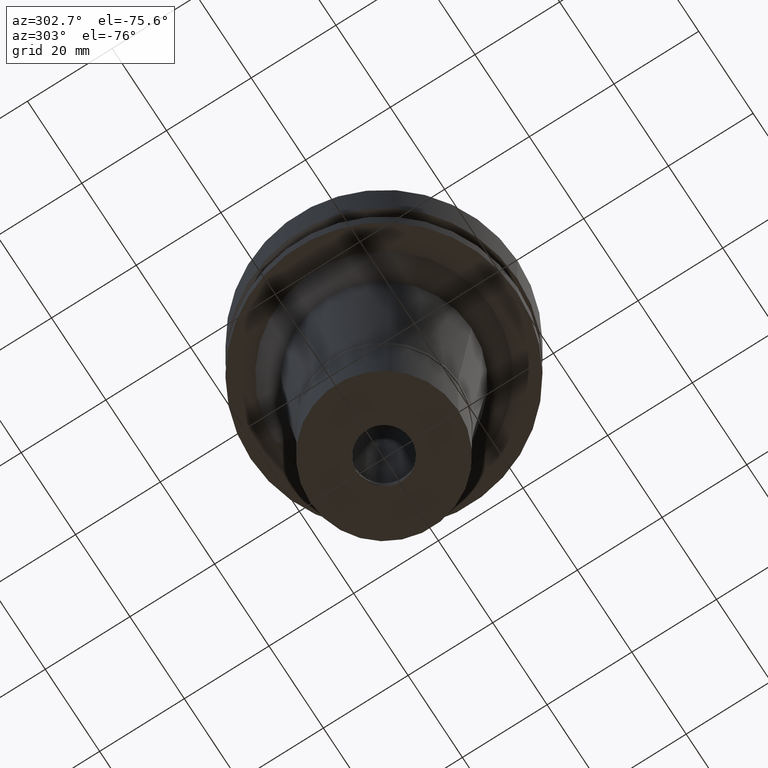
[diagram: clean part render]
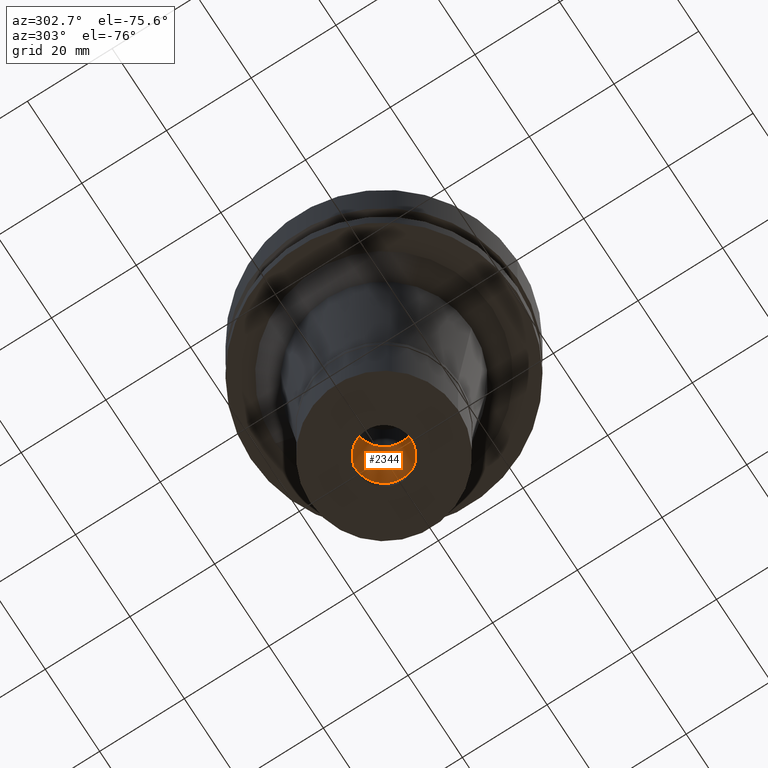
[diagram: same view with one face highlighted and labeled with its STEP entity id]
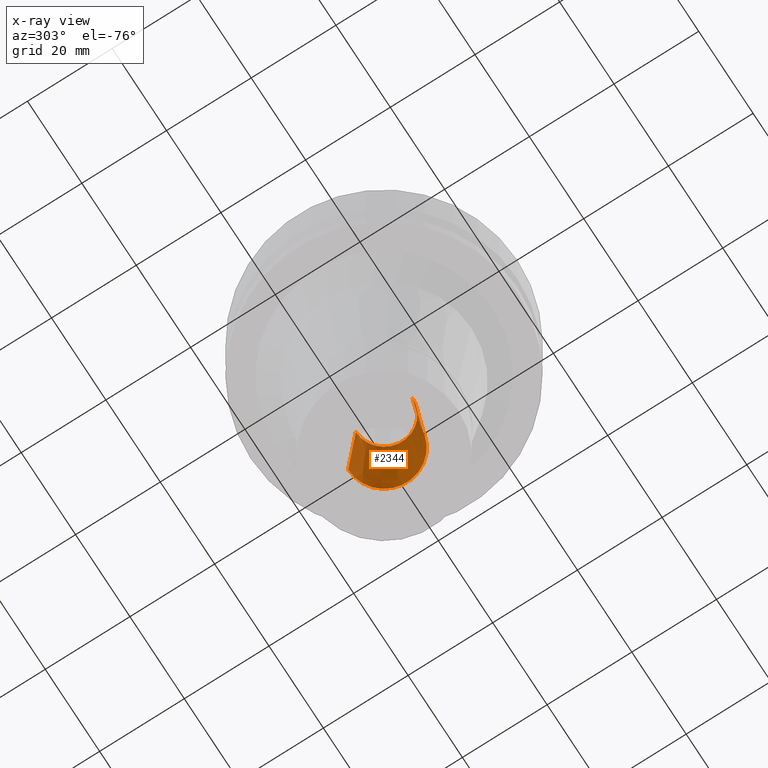
[diagram: x-ray of the same camera — body ghosted, the highlighted face saturated]
A machine part, auxiliary view. The second image highlights one B-rep face of the part: STEP entity #2344.
The next image is the same camera in x-ray: the body ghosted, the highlighted face saturated — about 10% of this face is hidden behind the body in this view.
In plain terms, the highlighted conical surface has half-angle 4 deg.
Its self-contained STEP definition (entity closure, byte-faithful):
#93 = AXIS2_PLACEMENT_3D ( 'NONE', #2412, #1977, #872 ) ;
#105 = AXIS2_PLACEMENT_3D ( 'NONE', #1841, #752, #2311 ) ;
#175 = VERTEX_POINT ( 'NONE', #1789 ) ;
#193 = VECTOR ( 'NONE', #623, 1000.000000000000000 ) ;
#197 = AXIS2_PLACEMENT_3D ( 'NONE', #2849, #618, #1626 ) ;
#203 = EDGE_LOOP ( 'NONE', ( #865, #1835, #1834, #771 ) ) ;
#421 = VECTOR ( 'NONE', #2704, 1000.000000000000000 ) ;
#618 = DIRECTION ( 'NONE',  ( 0.0000000000000000000, 0.0000000000000000000, -1.000000000000000000 ) ) ;
#623 = DIRECTION ( 'NONE',  ( 0.0000000000000000000, -0.06975647374412173585, 0.9975640502598245307 ) ) ;
#732 = LINE ( 'NONE', #2160, #193 ) ;
#752 = DIRECTION ( 'NONE',  ( 0.0000000000000000000, 0.0000000000000000000, -1.000000000000000000 ) ) ;
#771 = ORIENTED_EDGE ( 'NONE', *, *, #1538, .F. ) ;
#794 = CONICAL_SURFACE ( 'NONE', #197, 7.575000000000000178, 0.06981317007975955391 ) ;
#845 = CARTESIAN_POINT ( 'NONE',  ( 0.0000000000000000000, 6.649999999999999467, -56.84376742508000291 ) ) ;
#865 = ORIENTED_EDGE ( 'NONE', *, *, #2471, .T. ) ;
#872 = DIRECTION ( 'NONE',  ( 0.0000000000000000000, 1.000000000000000000, 0.0000000000000000000 ) ) ;
#901 = EDGE_CURVE ( 'NONE', #1087, #175, #1636, .T. ) ;
#1087 = VERTEX_POINT ( 'NONE', #1966 ) ;
#1210 = CIRCLE ( 'NONE', #93, 6.649999999999999467 ) ;
#1286 = EDGE_CURVE ( 'NONE', #1687, #175, #1210, .T. ) ;
#1329 = CIRCLE ( 'NONE', #105, 8.500000000000000000 ) ;
#1538 = EDGE_CURVE ( 'NONE', #2715, #1687, #732, .T. ) ;
#1605 = CARTESIAN_POINT ( 'NONE',  ( 0.0000000000000000000, -8.500000000000000000, -83.29999999999999716 ) ) ;
#1626 = DIRECTION ( 'NONE',  ( 0.0000000000000000000, -1.000000000000000000, 0.0000000000000000000 ) ) ;
#1636 = LINE ( 'NONE', #1605, #421 ) ;
#1681 = CARTESIAN_POINT ( 'NONE',  ( 0.0000000000000000000, 8.500000000000000000, -83.29999999999999716 ) ) ;
#1687 = VERTEX_POINT ( 'NONE', #845 ) ;
#1746 = FACE_OUTER_BOUND ( 'NONE', #203, .T. ) ;
#1789 = CARTESIAN_POINT ( 'NONE',  ( 0.0000000000000000000, -6.649999999999999467, -56.84376742508000291 ) ) ;
#1834 = ORIENTED_EDGE ( 'NONE', *, *, #1286, .F. ) ;
#1835 = ORIENTED_EDGE ( 'NONE', *, *, #901, .T. ) ;
#1841 = CARTESIAN_POINT ( 'NONE',  ( 0.0000000000000000000, 0.0000000000000000000, -83.29999999999999716 ) ) ;
#1966 = CARTESIAN_POINT ( 'NONE',  ( 0.0000000000000000000, -8.500000000000000000, -83.29999999999999716 ) ) ;
#1977 = DIRECTION ( 'NONE',  ( 0.0000000000000000000, 0.0000000000000000000, -1.000000000000000000 ) ) ;
#2160 = CARTESIAN_POINT ( 'NONE',  ( 0.0000000000000000000, 8.500000000000000000, -83.29999999999999716 ) ) ;
#2311 = DIRECTION ( 'NONE',  ( 0.0000000000000000000, 1.000000000000000000, 0.0000000000000000000 ) ) ;
#2344 = ADVANCED_FACE ( 'NONE', ( #1746 ), #794, .F. ) ;
#2412 = CARTESIAN_POINT ( 'NONE',  ( 0.0000000000000000000, 0.0000000000000000000, -56.84376742508000291 ) ) ;
#2471 = EDGE_CURVE ( 'NONE', #2715, #1087, #1329, .T. ) ;
#2704 = DIRECTION ( 'NONE',  ( 0.0000000000000000000, 0.06975647374412173585, 0.9975640502598245307 ) ) ;
#2715 = VERTEX_POINT ( 'NONE', #1681 ) ;
#2849 = CARTESIAN_POINT ( 'NONE',  ( 0.0000000000000000000, 0.0000000000000000000, -70.07188371254000003 ) ) ;